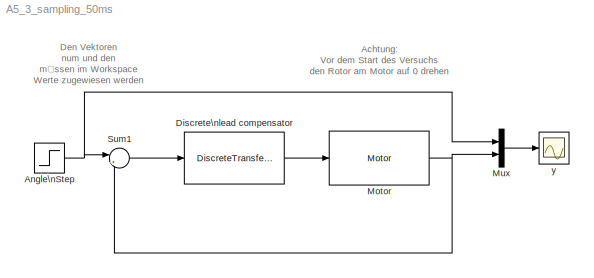
MODEL A5_3_sampling_50ms
KIND model
BLOCK [Step] Angle\nStep
  After = 2*pi
  SID = 151
  SampleTime = 0.05
BLOCK [DiscreteTransferFcn] Discrete\nlead compensator
  Denominator = den
  Numerator = num
  Ports = [1, 1]
  SID = 150
  SampleTime = 0.05
BLOCK [Reference] Motor  REF=DCmotor_library/Motor
  Ports = [1, 1]
  SID = 149
  SourceBlock = DCmotor_library/Motor
  motoridinput = 8
  name_signal = Angle
  ts = 50
BLOCK [Mux] Mux
  DisplayOption = bar
  Inputs = 2
  Ports = [2, 1]
  SID = 155
BLOCK [Sum] Sum1
  IconShape = round
  InputSameDT = off
  Inputs = |+-
  OutDataTypeMode = Inherit via internal rule
  OutDataTypeStr = Inherit: Inherit via internal rule
  Ports = [2, 1]
  SID = 4
  SaturateOnIntegerOverflow = off
BLOCK [Scope] y
  DataFormat = StructureWithTime
  Floating = off
  LimitDataPoints = off
  NumInputPorts = 1
  Ports = [1]
  SID = 148
  SampleTime = 0
  SaveName = ScopeData1
  YMax = 11
  YMin = -0.5
ANNOTATION (root): Achtung:\nVor dem Start des Versuchs\nden Rotor am Motor auf 0 drehen
ANNOTATION (root): Den Vektoren\nnum und den\nmüssen im Workspace \nWerte zugewiesen werden
NET Angle\nStep:1 -> Mux:1, Sum1:1
LINE Discrete\nlead compensator:1 -> Motor:1
NET Motor:1 -> Mux:2, Sum1:2
LINE Mux:1 -> y:1
LINE Sum1:1 -> Discrete\nlead compensator:1
note: NET lines group one-source signal fan-out (src -> all destinations, sorted); 1:1 wires keep LINE
